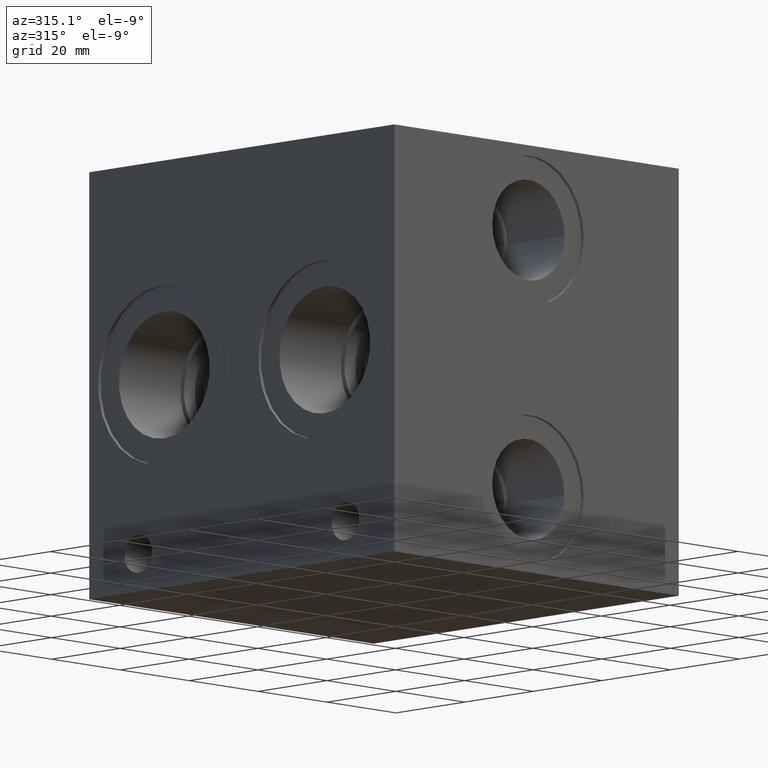
[diagram: clean part render]
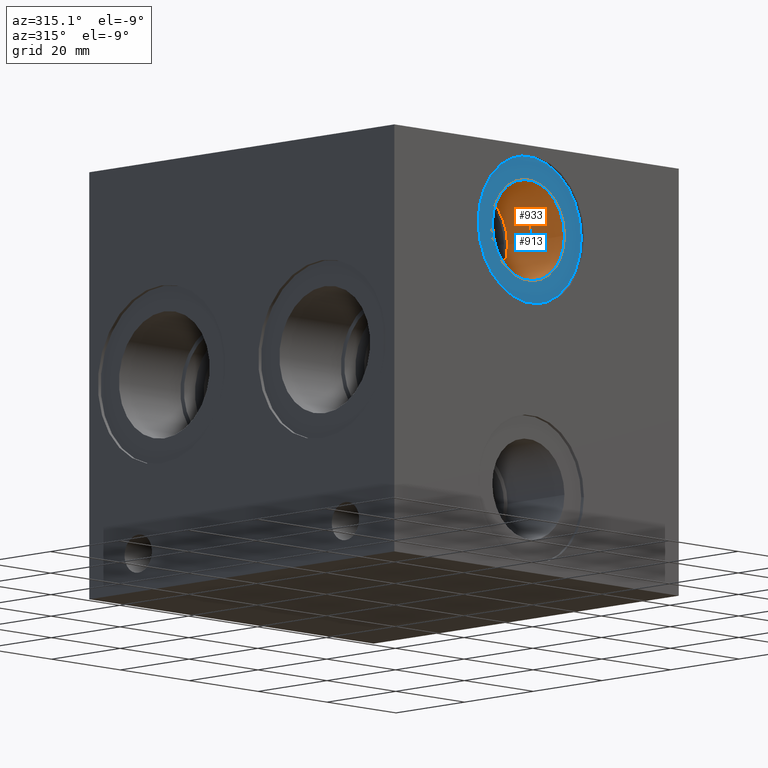
[diagram: same view with the hole feature highlighted: cylindrical wall and planar end face, labeled with their STEP entity ids]
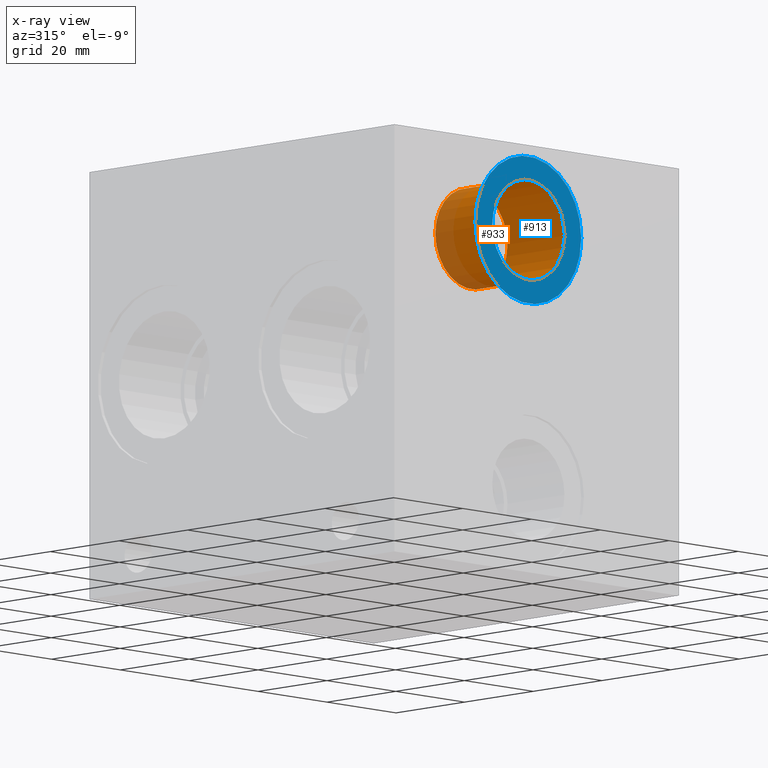
[diagram: x-ray of the same camera — body ghosted, the hole faces saturated]
A machine part, auxiliary view. The highlighted faces form one hole feature of diameter 20.955 mm: the cylindrical wall (entity #933, orange) and its adjacent planar end face (entity #913, blue) — they share a circular edge in the B-rep.
The next image is the same camera in x-ray (body ghosted, the hole faces saturated) — the bore reads through the body.
Wall:
#902=CARTESIAN_POINT('',(1.974500000000000,0.031000000000000,2.812000000000000));
#903=VERTEX_POINT('',#902);
#904=CARTESIAN_POINT('',(1.562000000000000,0.031000000000000,2.812000000000000));
#905=DIRECTION('',(0.0,1.0,0.0));
#906=DIRECTION('',(-1.0,0.0,0.0));
#907=AXIS2_PLACEMENT_3D('',#904,#905,#906);
#908=CIRCLE('',#907,0.412500000000000);
#909=EDGE_CURVE('',#903,#903,#908,.T.);
#914=CARTESIAN_POINT('',(1.562000000000000,0.031000000000000,2.812000000000000));
#915=DIRECTION('',(0.0,1.0,0.0));
#916=DIRECTION('',(-1.0,0.0,0.0));
#917=AXIS2_PLACEMENT_3D('',#914,#915,#916);
#918=CYLINDRICAL_SURFACE('',#917,0.412500000000000);
#919=ORIENTED_EDGE('',*,*,#909,.F.);
#920=EDGE_LOOP('',(#919));
#921=FACE_OUTER_BOUND('',#920,.T.);
#922=CARTESIAN_POINT('',(1.974500000000000,0.684000000000000,2.812000000000000));
#923=VERTEX_POINT('',#922);
#924=CARTESIAN_POINT('',(1.562000000000000,0.684000000000000,2.812000000000000));
#925=DIRECTION('',(0.0,1.0,0.0));
#926=DIRECTION('',(-1.0,0.0,0.0));
#927=AXIS2_PLACEMENT_3D('',#924,#925,#926);
#928=CIRCLE('',#927,0.412500000000000);
#929=EDGE_CURVE('',#923,#923,#928,.T.);
#930=ORIENTED_EDGE('',*,*,#929,.T.);
#931=EDGE_LOOP('',(#930));
#932=FACE_BOUND('',#931,.T.);
#933=ADVANCED_FACE('',(#921,#932),#918,.F.);
End face:
#882=CARTESIAN_POINT('',(2.166000000000000,0.031000000000000,2.812000000000000));
#883=VERTEX_POINT('',#882);
#884=CARTESIAN_POINT('',(1.562000000000000,0.031000000000000,2.812000000000000));
#885=DIRECTION('',(0.0,1.0,0.0));
#886=DIRECTION('',(-1.0,0.0,0.0));
#887=AXIS2_PLACEMENT_3D('',#884,#885,#886);
#888=CIRCLE('',#887,0.604000000000000);
#889=EDGE_CURVE('',#883,#883,#888,.T.);
#894=CARTESIAN_POINT('',(1.562000000000000,0.031000000000000,2.812000000000000));
#895=DIRECTION('',(0.0,1.0,0.0));
#896=DIRECTION('',(0.0,0.0,1.0));
#897=AXIS2_PLACEMENT_3D('',#894,#895,#896);
#898=PLANE('',#897);
#899=ORIENTED_EDGE('',*,*,#889,.F.);
#900=EDGE_LOOP('',(#899));
#901=FACE_OUTER_BOUND('',#900,.T.);
#902=CARTESIAN_POINT('',(1.974500000000000,0.031000000000000,2.812000000000000));
#903=VERTEX_POINT('',#902);
#904=CARTESIAN_POINT('',(1.562000000000000,0.031000000000000,2.812000000000000));
#905=DIRECTION('',(0.0,1.0,0.0));
#906=DIRECTION('',(-1.0,0.0,0.0));
#907=AXIS2_PLACEMENT_3D('',#904,#905,#906);
#908=CIRCLE('',#907,0.412500000000000);
#909=EDGE_CURVE('',#903,#903,#908,.T.);
#910=ORIENTED_EDGE('',*,*,#909,.T.);
#911=EDGE_LOOP('',(#910));
#912=FACE_BOUND('',#911,.T.);
#913=ADVANCED_FACE('',(#901,#912),#898,.F.);